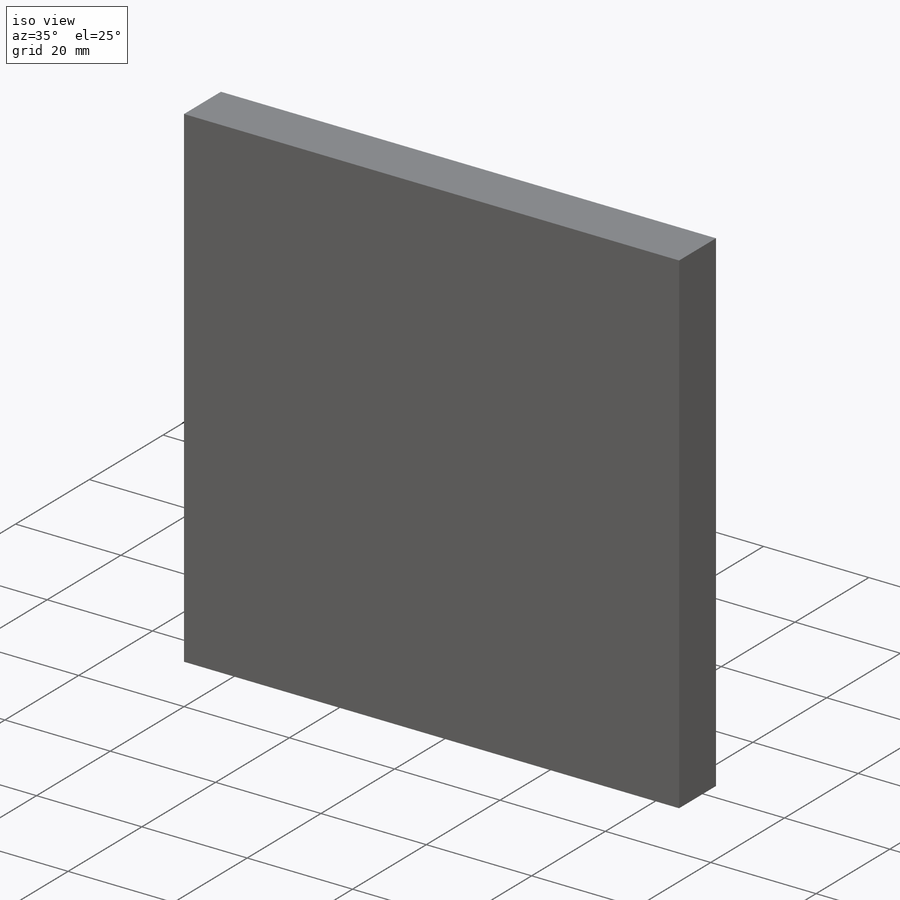
[diagram: iso view]
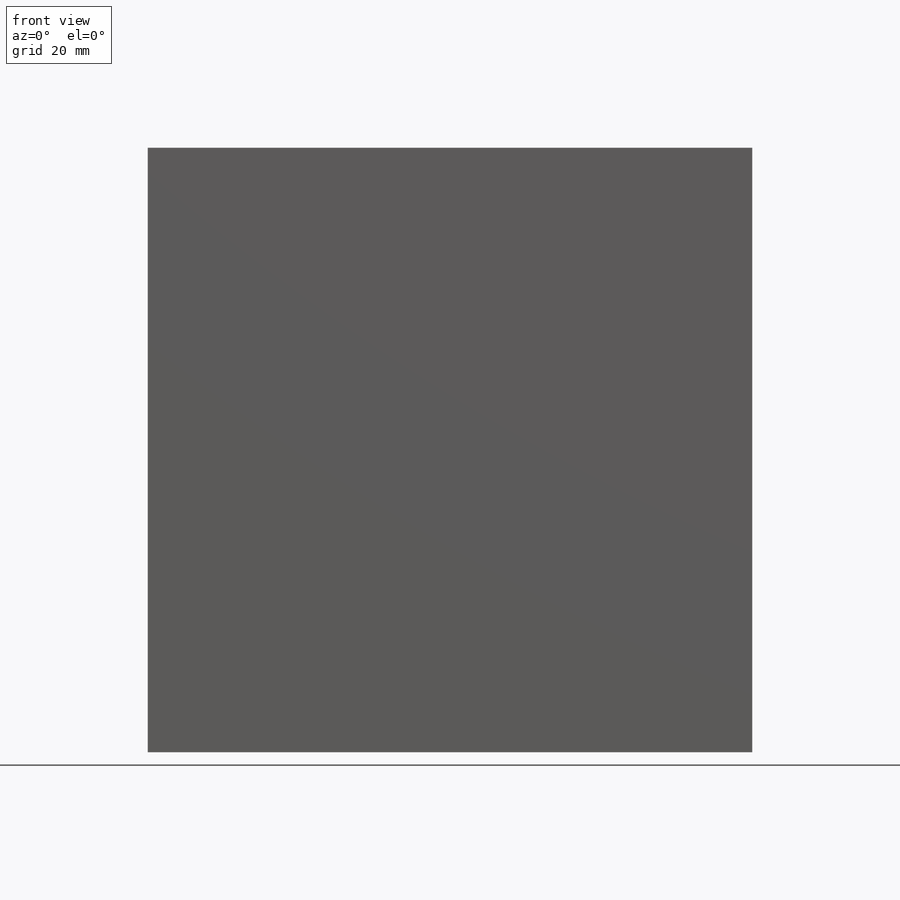
[diagram: front view]
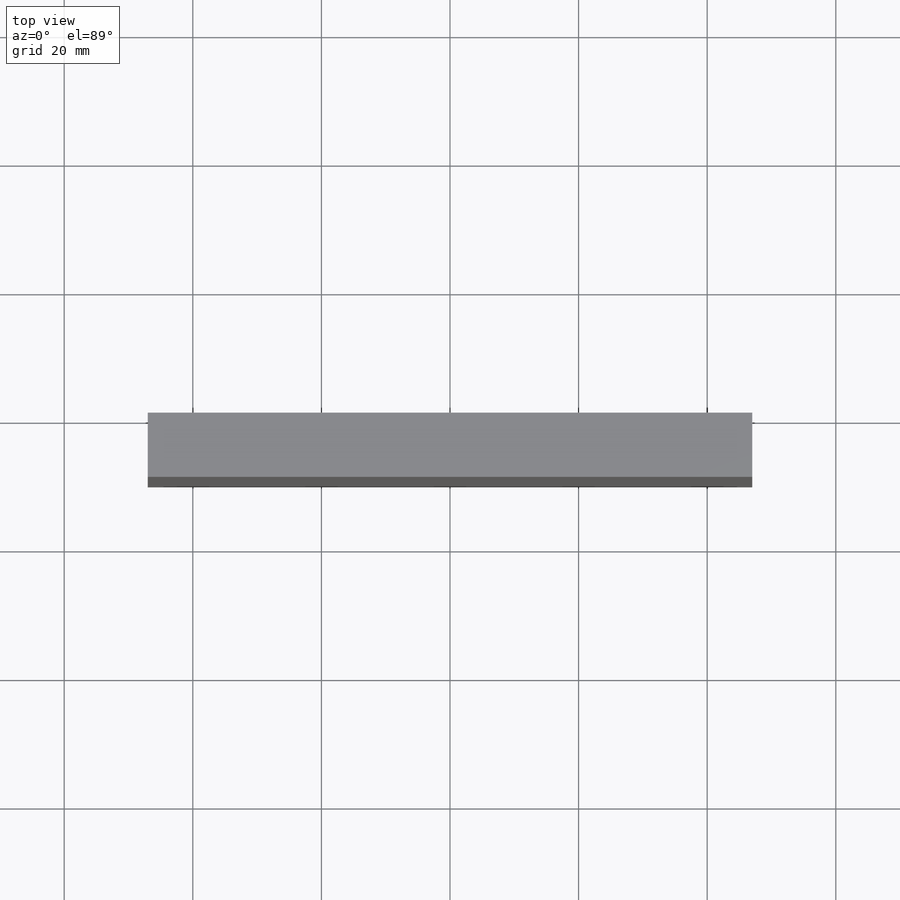
[diagram: top view]
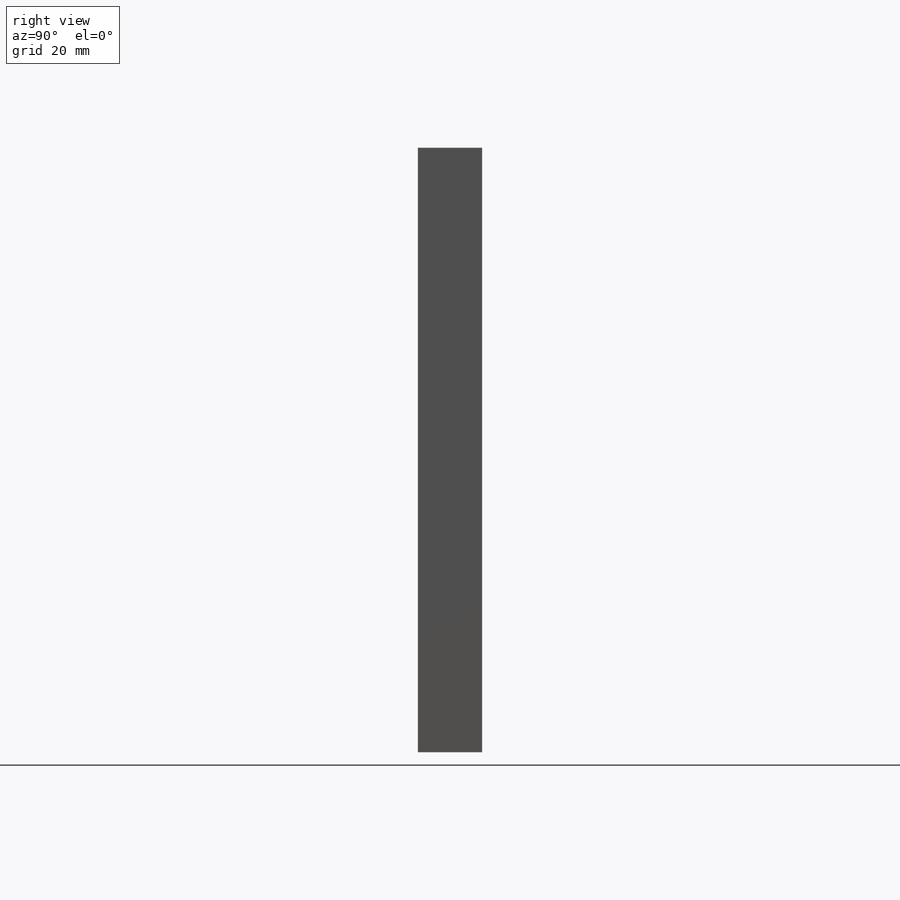
[diagram: right view]
SOLIDWORKS PART (.sldprt)
format: sldprt  version: not decoded by parser v0  size: 140,288 bytes
history: native  units: mm
features: plane x3, sketch x3, material x1, extrude x1, cut_extrude x1 (+10 scaffold rows collapsed)
feature tree (19):
  scaffold x10  (default folders/planes/origin — collapsed)
  material  "Materiale <non specificato>"
  plane  "Piano frontale"
  plane  "Piano superiore"
  plane  "Piano destro"
  sketch  "Schizzo1"  dims[c1.D1=~77.200606mm c1.D2=~143.182563mm c2.D1=94.0mm c2.D2=94.0mm]
  extrude  "Estrusione-Estrusione1"  Depth=10mm
  sketch  "Schizzo2"  dims[D1=~52.48288mm D2=~69.732498mm]
  sketch  "Schizzo3"  dims[D1=16.0mm]
  cut_extrude  "Taglio-Estrusione1"  Depth=5mm
decode coverage: 5 of 5 modeling features carry decoded parameters
note: ~ marks probable driven/reference dimensions
note: suppression state not decoded; provenance and decode notes live in map.json
